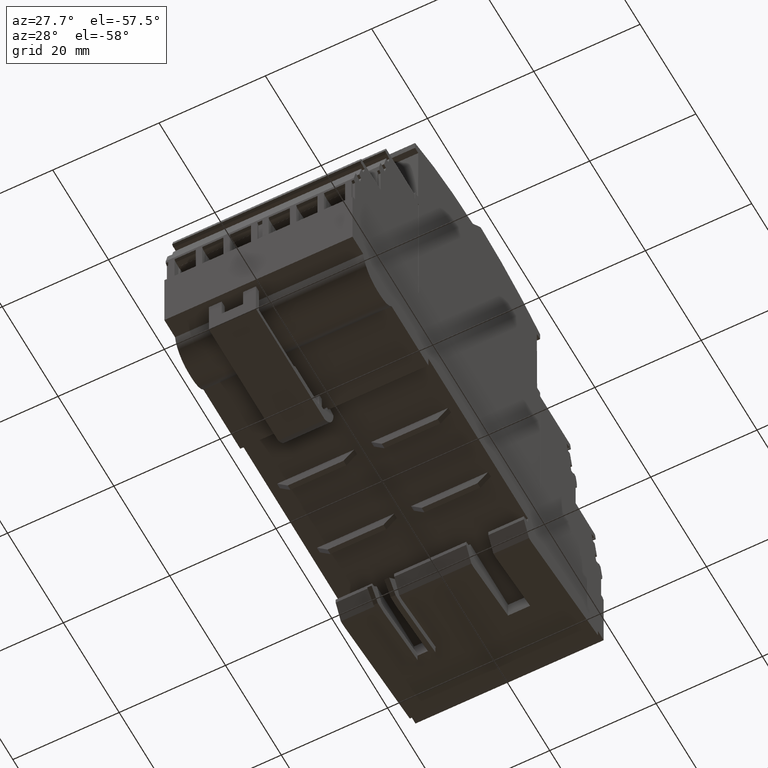
[diagram: clean part render]
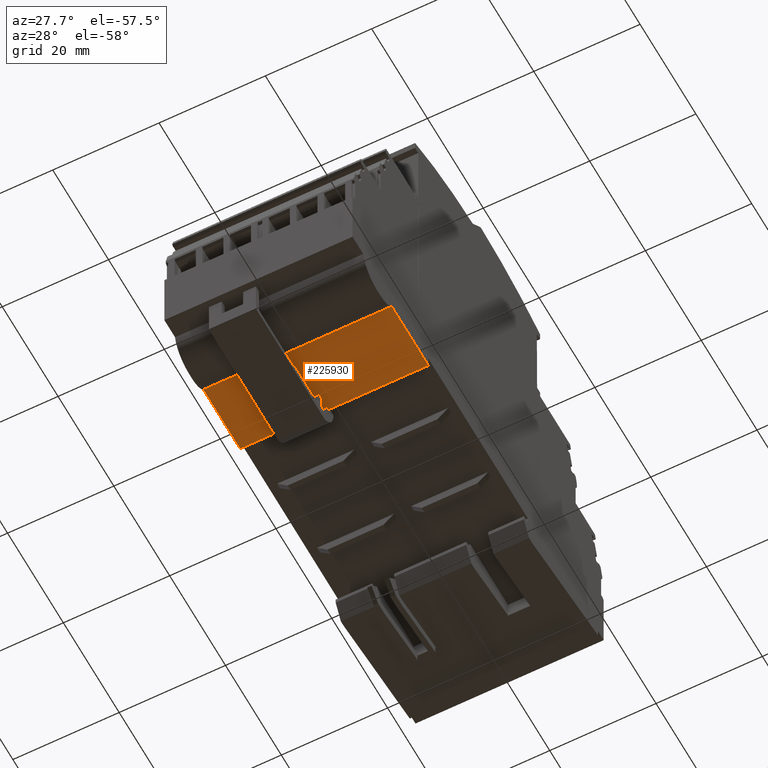
[diagram: same view with one face highlighted and labeled with its STEP entity id]
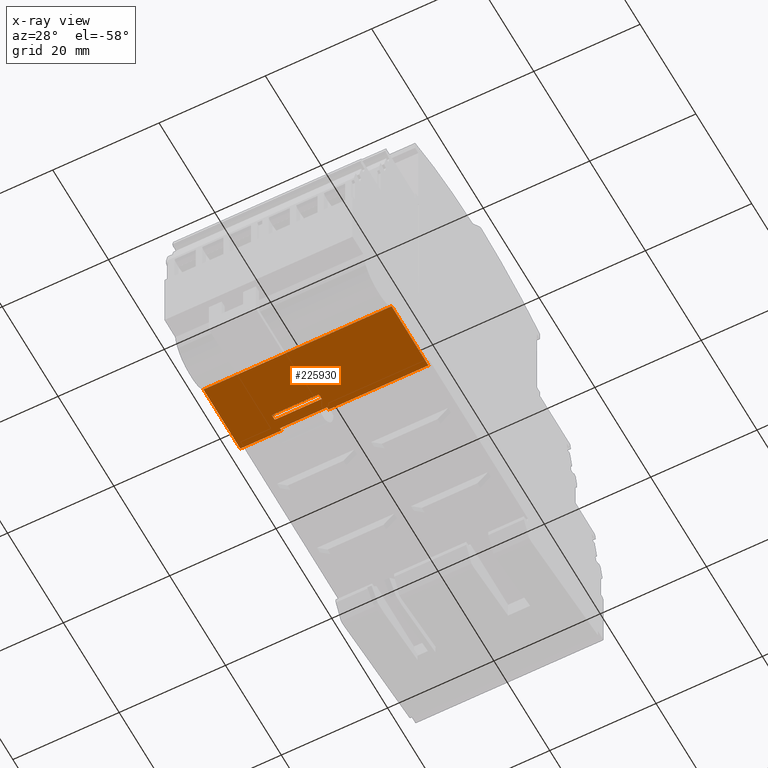
[diagram: x-ray of the same camera — body ghosted, the highlighted face saturated]
A machine part, auxiliary view. The second image highlights one B-rep face of the part: STEP entity #225930.
The next image is the same camera in x-ray: the body ghosted, the highlighted face saturated — about 0% of this face is hidden behind the body in this view.
In plain terms, the highlighted planar face has unit normal (0, 0, -1).
Its self-contained STEP definition (entity closure, byte-faithful):
#600=CARTESIAN_POINT('',(110.789064259478,155.621212742338,
68.5021431980012));
#610=VERTEX_POINT('',#600);
#640=CARTESIAN_POINT('',(132.588931460614,155.697308943239,
68.5021431980014));
#650=DIRECTION('',(-0.99999390765779,-0.00349065141522371,
-6.54888979125783E-15));
#660=VECTOR('',#650,1.);
#670=LINE('',#640,#660);
#680=CARTESIAN_POINT('',(111.789058167136,155.624703393753,
68.5021431980012));
#690=VERTEX_POINT('',#680);
#700=EDGE_CURVE('',#690,#610,#670,.T.);
#1000=CARTESIAN_POINT('',(113.689046591686,155.631335631442,
68.5021431980012));
#1010=VERTEX_POINT('',#1000);
#1040=CARTESIAN_POINT('',(114.189043545514,155.633080957149,
68.5021431980012));
#1050=VERTEX_POINT('',#1040);
#1060=EDGE_CURVE('',#1050,#1010,#670,.T.);
#23150=CARTESIAN_POINT('',(114.189043545514,155.633080957149,
87.3021431980011));
#23160=VERTEX_POINT('',#23150);
#23190=CARTESIAN_POINT('',(132.591307332715,155.697317236631,
87.3021431980011));
#23200=DIRECTION('',(0.999993907657791,0.00349065141522371,
1.06338673324829E-15));
#23210=VECTOR('',#23200,1.);
#23220=LINE('',#23190,#23210);
#23230=CARTESIAN_POINT('',(100.994947201076,155.587024685481,
87.3021431980011));
#23240=VERTEX_POINT('',#23230);
#23250=EDGE_CURVE('',#23240,#23160,#23220,.T.);
#39030=CARTESIAN_POINT('',(114.189043545514,155.633080957149,
79.6021431980011));
#39040=DIRECTION('',(-1.06338201652093E-15,-2.53986208454026E-19,1.));
#39050=VECTOR('',#39040,1.);
#39060=LINE('',#39030,#39050);
#39070=EDGE_CURVE('',#1050,#23160,#39060,.T.);
#104220=CARTESIAN_POINT('',(114.189043545514,155.633080957149,
59.6521431980011));
#104230=VERTEX_POINT('',#104220);
#104260=CARTESIAN_POINT('',(201.329863964497,155.937261038438,
59.6521431980011));
#104270=DIRECTION('',(-0.999993907657791,-0.00349065141522371,
-1.0633764246111E-15));
#104280=VECTOR('',#104270,1.);
#104290=LINE('',#104260,#104280);
#104300=CARTESIAN_POINT('',(113.689046591686,155.631335631442,
59.6521431980011));
#104310=VERTEX_POINT('',#104300);
#104320=EDGE_CURVE('',#104230,#104310,#104290,.T.);
#104620=CARTESIAN_POINT('',(111.789058167136,155.624703393753,
59.6521431980011));
#104630=VERTEX_POINT('',#104620);
#104660=CARTESIAN_POINT('',(110.789064259478,155.621212742338,
59.652143198001));
#104670=VERTEX_POINT('',#104660);
#104680=EDGE_CURVE('',#104630,#104670,#104290,.T.);
#112950=CARTESIAN_POINT('',(100.994947201076,155.587024685481,
51.902143198001));
#112960=VERTEX_POINT('',#112950);
#112990=CARTESIAN_POINT('',(71.5479520173037,155.484234863838,
51.902143198001));
#113000=DIRECTION('',(-0.999993907657791,-0.00349065141522371,
-1.0633764246111E-15));
#113010=VECTOR('',#113000,1.);
#113020=LINE('',#112990,#113010);
#113030=CARTESIAN_POINT('',(114.189043545514,155.633080957149,
51.9021431980011));
#113040=VERTEX_POINT('',#113030);
#113050=EDGE_CURVE('',#113040,#112960,#113020,.T.);
#225470=CARTESIAN_POINT('',(114.189043545514,155.633080957149,
51.9021431980011));
#225480=DIRECTION('',(0.00349065141522371,-0.99999390765779,
3.45791127980909E-18));
#225490=DIRECTION('',(0.999993907657791,0.00349065141522371,
1.0633764246111E-15));
#225500=AXIS2_PLACEMENT_3D('',#225470,#225480,#225490);
#225510=PLANE('',#225500);
#225520=ORIENTED_EDGE('',*,*,#700,.F.);
#225530=CARTESIAN_POINT('',(110.789064259478,155.621212742338,
79.6021431980011));
#225540=DIRECTION('',(1.06339232509531E-15,2.54022192313032E-19,-1.));
#225550=VECTOR('',#225540,1.);
#225560=LINE('',#225530,#225550);
#225570=EDGE_CURVE('',#610,#104670,#225560,.T.);
#225580=ORIENTED_EDGE('',*,*,#225570,.F.);
#225590=ORIENTED_EDGE('',*,*,#104680,.T.);
#225600=CARTESIAN_POINT('',(111.789058167136,155.624703393753,
79.6021431980011));
#225610=DIRECTION('',(1.06339232509531E-15,2.54022192313032E-19,-1.));
#225620=VECTOR('',#225610,1.);
#225630=LINE('',#225600,#225620);
#225640=EDGE_CURVE('',#690,#104630,#225630,.T.);
#225650=ORIENTED_EDGE('',*,*,#225640,.T.);
#225660=EDGE_LOOP('',(#225650,#225590,#225580,#225520));
#225670=FACE_BOUND('',#225660,.T.);
#225680=ORIENTED_EDGE('',*,*,#104320,.T.);
#225690=CARTESIAN_POINT('',(114.189043545514,155.633080957149,
18.3521431979086));
#225700=DIRECTION('',(-1.06338201652093E-15,-2.53986208454016E-19,1.));
#225710=VECTOR('',#225700,1.);
#225720=LINE('',#225690,#225710);
#225730=EDGE_CURVE('',#113040,#104230,#225720,.T.);
#225740=ORIENTED_EDGE('',*,*,#225730,.T.);
#225750=ORIENTED_EDGE('',*,*,#113050,.F.);
#225760=CARTESIAN_POINT('',(100.994947201076,155.587024685481,
51.902143198001));
#225770=DIRECTION('',(-1.06338201652093E-15,-2.53986208454016E-19,1.));
#225780=VECTOR('',#225770,1.);
#225790=LINE('',#225760,#225780);
#225800=EDGE_CURVE('',#112960,#23240,#225790,.T.);
#225810=ORIENTED_EDGE('',*,*,#225800,.F.);
#225820=ORIENTED_EDGE('',*,*,#23250,.F.);
#225830=ORIENTED_EDGE('',*,*,#39070,.T.);
#225840=ORIENTED_EDGE('',*,*,#1060,.F.);
#225850=CARTESIAN_POINT('',(113.689046591686,155.631335631442,
79.6021431980011));
#225860=DIRECTION('',(1.06339232509531E-15,2.54022192313032E-19,-1.));
#225870=VECTOR('',#225860,1.);
#225880=LINE('',#225850,#225870);
#225890=EDGE_CURVE('',#1010,#104310,#225880,.T.);
#225900=ORIENTED_EDGE('',*,*,#225890,.F.);
#225910=EDGE_LOOP('',(#225900,#225840,#225830,#225820,#225810,#225750,
#225740,#225680));
#225920=FACE_OUTER_BOUND('',#225910,.T.);
#225930=ADVANCED_FACE('',(#225670,#225920),#225510,.T.);